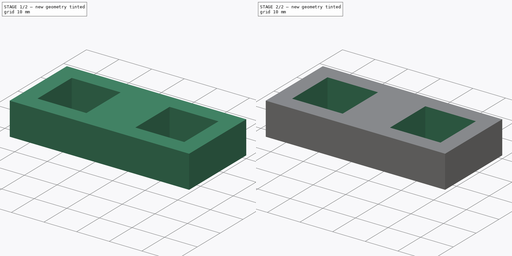
[diagram: build sequence overview — one tinted view per stage of 2, left to right]
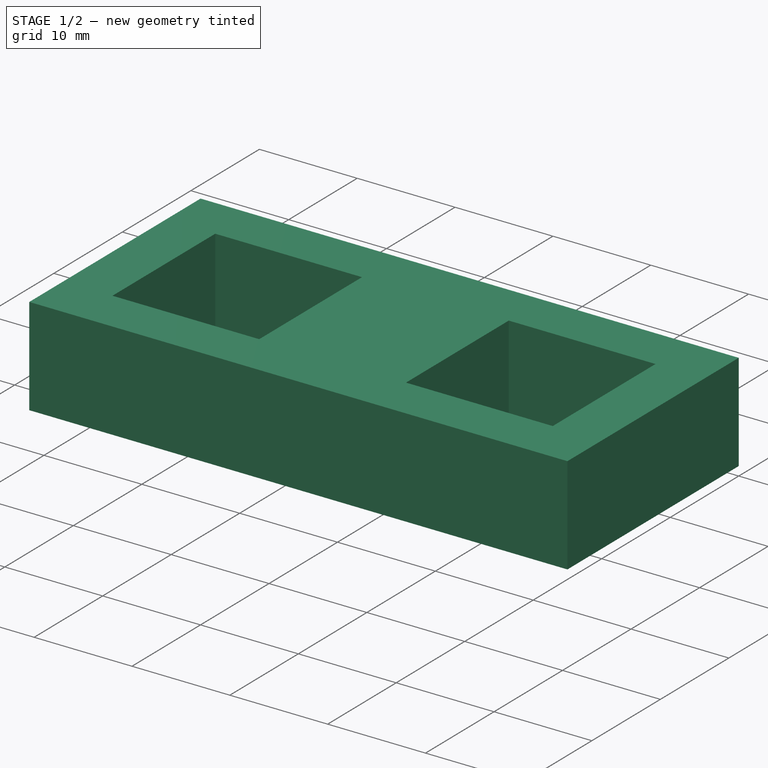
[diagram: stage 1 of 2 — iso view after this stage's code; geometry added in this stage tinted green]
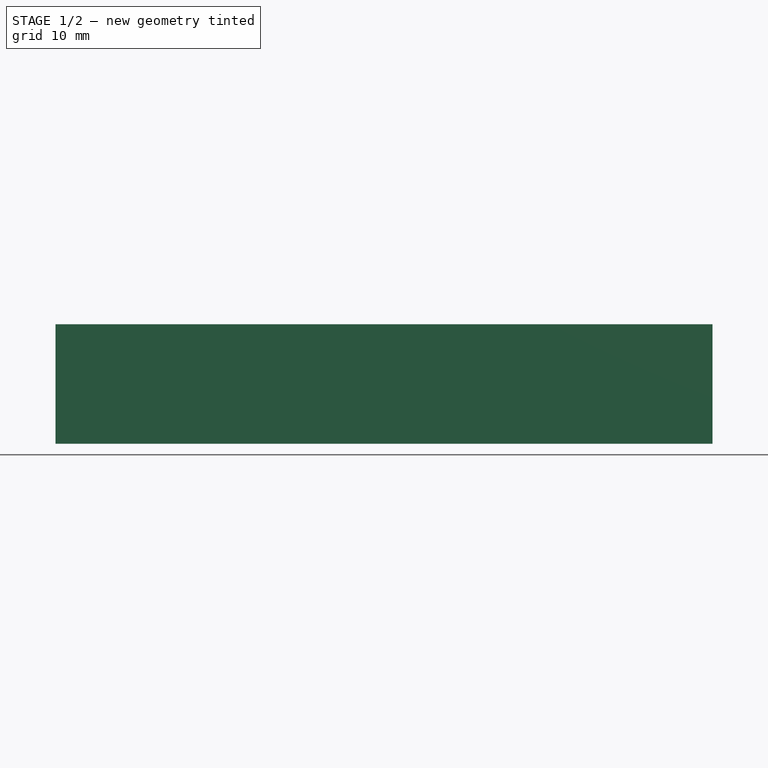
[diagram: stage 1 of 2 — front view after this stage's code; geometry added in this stage tinted green]
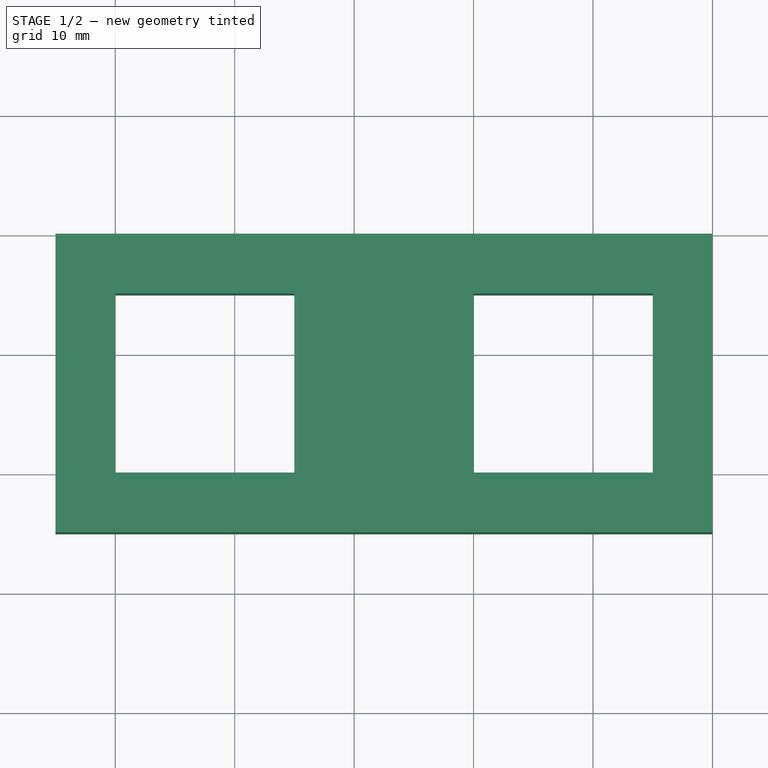
[diagram: stage 1 of 2 — top view after this stage's code; geometry added in this stage tinted green]
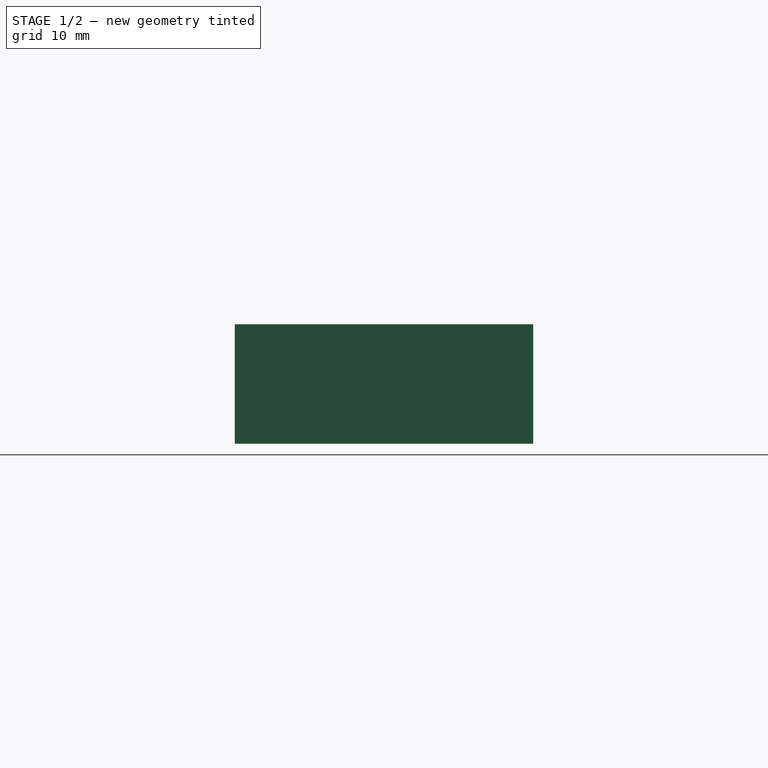
[diagram: stage 1 of 2 — right view after this stage's code; geometry added in this stage tinted green]
FCSTD DOCUMENT  (FreeCAD 0.21R33694 (Git))
Label: MakerbeamXL_CameraMountHolder
License: All rights reserved
LicenseURL: https://en.wikipedia.org/wiki/All_rights_reserved
objects: Sketcher::SketchObject×2, PartDesign::Pad×1, PartDesign::Pocket×1, PartDesign::Body×1
note: 7 computed .brp shape members not serialized (recipe doc carries the construction recipe); baked Part::Feature solids carry a one-line shape summary decoded from their .brp

FEATURE [Sketcher::SketchObject] Sketch
  FullyConstrained = true
  MapMode = 5
  Support = -> [XY_Plane]
  sketch-geometry (26):
    g0: LineSegment StartX=0 StartY=0 StartZ=0 EndX=45 EndY=0 EndZ=0
    g1: LineSegment StartX=45 StartY=0 StartZ=0 EndX=45 EndY=15 EndZ=0
    g2: LineSegment StartX=45 StartY=15 StartZ=0 EndX=0 EndY=15 EndZ=0
    g3: LineSegment StartX=0 StartY=15 StartZ=0 EndX=0 EndY=0 EndZ=0
    g4: LineSegment StartX=0 StartY=0 StartZ=0 EndX=7.5 EndY=0 EndZ=0
    g5: LineSegment StartX=7.5 StartY=0 StartZ=0 EndX=7.5 EndY=7.5 EndZ=0
    g6: LineSegment StartX=7.5 StartY=7.5 StartZ=0 EndX=0 EndY=7.5 EndZ=0
    g7: LineSegment StartX=0 StartY=7.5 StartZ=0 EndX=0 EndY=0 EndZ=0
    g8: LineSegment StartX=45 StartY=0 StartZ=0 EndX=37.5 EndY=0 EndZ=0
    g9: LineSegment StartX=37.5 StartY=0 StartZ=0 EndX=37.5 EndY=7.5 EndZ=0
    g10: LineSegment StartX=37.5 StartY=7.5 StartZ=0 EndX=45 EndY=7.5 EndZ=0
    g11: LineSegment StartX=45 StartY=7.5 StartZ=0 EndX=45 EndY=0 EndZ=0
    g12: Circle CenterX=7.5 CenterY=7.5 CenterZ=0 NormalX=0 NormalY=0 NormalZ=1 AngleXU=0 Radius=1.5
    g13: Circle CenterX=37.5 CenterY=7.5 CenterZ=0 NormalX=0 NormalY=0 NormalZ=1 AngleXU=0 Radius=1.5
    g14: LineSegment StartX=0 StartY=0 StartZ=0 EndX=15 EndY=0 EndZ=0
    g15: LineSegment StartX=15 StartY=0 StartZ=0 EndX=15 EndY=15 EndZ=0
    g16: LineSegment StartX=15 StartY=15 StartZ=0 EndX=0 EndY=15 EndZ=0
    g17: LineSegment StartX=0 StartY=15 StartZ=0 EndX=0 EndY=0 EndZ=0
    g18: LineSegment StartX=45 StartY=0 StartZ=0 EndX=30 EndY=0 EndZ=0
    g19: LineSegment StartX=30 StartY=0 StartZ=0 EndX=30 EndY=15 EndZ=0
    g20: LineSegment StartX=30 StartY=15 StartZ=0 EndX=45 EndY=15 EndZ=0
    g21: LineSegment StartX=45 StartY=15 StartZ=0 EndX=45 EndY=0 EndZ=0
    g22: LineSegment StartX=-5 StartY=20 StartZ=0 EndX=50 EndY=20 EndZ=0
    g23: LineSegment StartX=50 StartY=20 StartZ=0 EndX=50 EndY=-5 EndZ=0
    g24: LineSegment StartX=50 StartY=-5 StartZ=0 EndX=-5 EndY=-5 EndZ=0
    g25: LineSegment StartX=-5 StartY=-5 StartZ=0 EndX=-5 EndY=20 EndZ=0
  constraints (71):
    c: Coincident(g0,g1)
    c: Coincident(g1,g2)
    c: Coincident(g2,g3)
    c: Coincident(g3,g0)
    c: Horizontal(g0)
    c: Horizontal(g2)
    c: Vertical(g1)
    c: Vertical(g3)
    c: Coincident(g0,g-1)
    c: DistanceX(g2,g2) = 45
    c: DistanceY(g1,g1) = 15
    c: Coincident(g4,g5)
    c: Coincident(g5,g6)
    c: Coincident(g6,g7)
    c: Coincident(g7,g4)
    c: Horizontal(g4)
    c: Horizontal(g6)
    c: Vertical(g5)
    c: Vertical(g7)
    c: Coincident(g4,g0)
    c: Coincident(g8,g9)
    c: Coincident(g9,g10)
    c: Coincident(g10,g11)
    c: Coincident(g11,g8)
    c: Horizontal(g8)
    c: Horizontal(g10)
    c: Vertical(g9)
    c: Vertical(g11)
    c: Coincident(g8,g0)
    c: Equal(g6,g10)
    c: Equal(g5,g9)
    c: DistanceX(g6,g6) = 7.5
    c: Equal(g5,g6)
    c: Coincident(g12,g5)
    c: Coincident(g13,g9)
    c: Equal(g12,g13)
    c: Diameter(g12) = 3
    c: Coincident(g14,g15)
    c: Coincident(g15,g16)
    c: Coincident(g16,g17)
    c: Coincident(g17,g14)
    c: Horizontal(g14)
    c: Horizontal(g16)
    c: Vertical(g15)
    c: Vertical(g17)
    c: Coincident(g14,g0)
    c: PointOnObject(g15,g2)
    c: Coincident(g18,g19)
    c: Coincident(g19,g20)
    c: Coincident(g20,g21)
    c: Coincident(g21,g18)
    c: Horizontal(g18)
    c: Horizontal(g20)
    c: Vertical(g19)
    c: Vertical(g21)
    c: Coincident(g18,g0)
    c: PointOnObject(g19,g2)
    c: Coincident(g22,g23)
    c: Coincident(g23,g24)
    c: Coincident(g24,g25)
    c: Coincident(g25,g22)
    c: Horizontal(g22)
    c: Horizontal(g24)
    c: Vertical(g23)
    c: Vertical(g25)
    c: DistanceY(g16,g22) = 5
    c: DistanceY(g24,g14) = 5
    c: DistanceX(g20,g22) = 5
    c: DistanceX(g22,g16) = 5
    c: DistanceX(g16,g16) = 15
    c: DistanceX(g20,g20) = 15
FEATURE [PartDesign::Pad] Pad
  Direction = (0,0,1)
  Length = 10
  Length2 = 10
  Profile = -> Sketch
  ReferenceAxis = -> Sketch [N_Axis]
  Type = 0
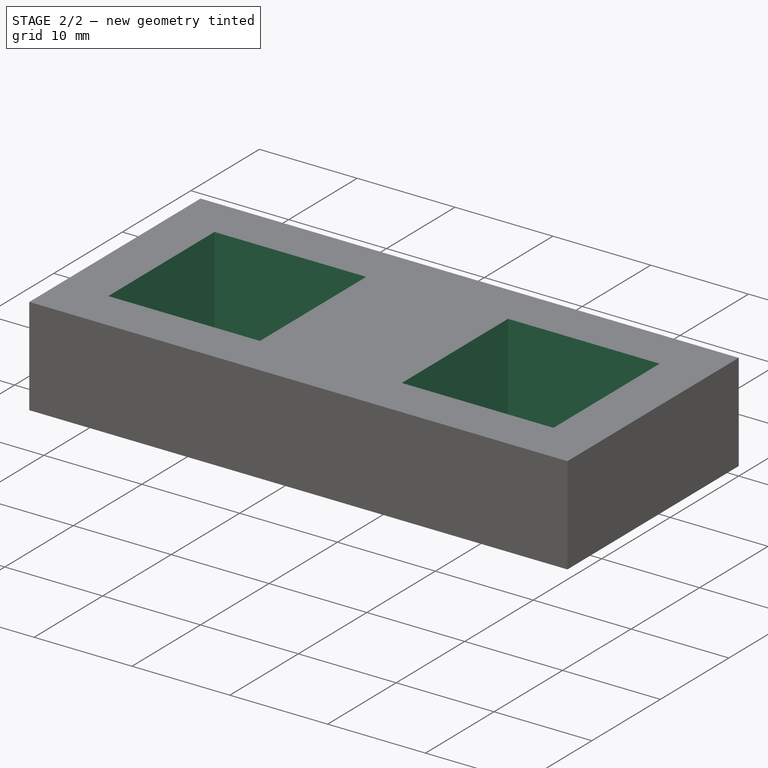
[diagram: stage 2 of 2 — iso view after this stage's code; geometry added in this stage tinted green]
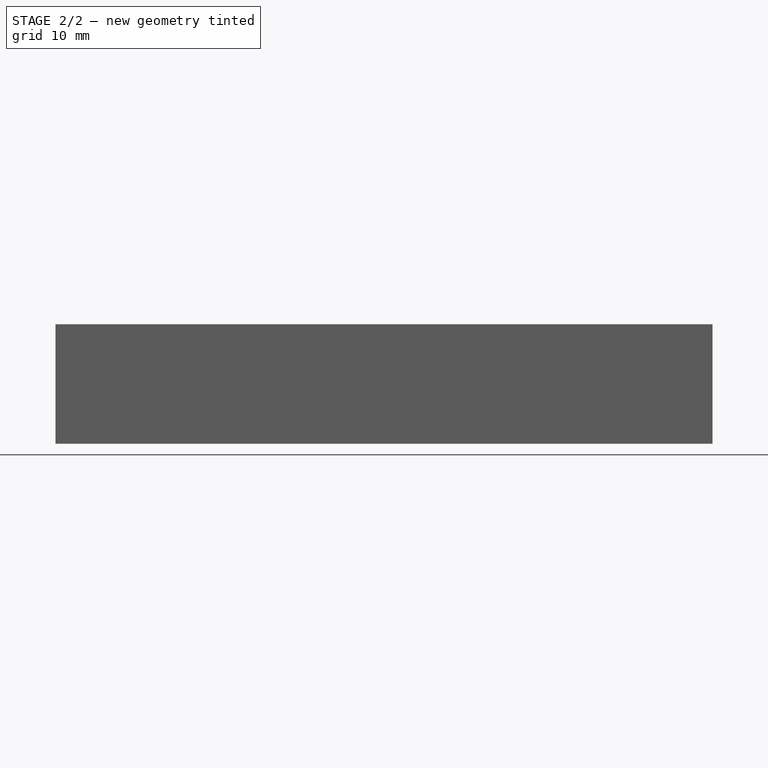
[diagram: stage 2 of 2 — front view after this stage's code; geometry added in this stage tinted green]
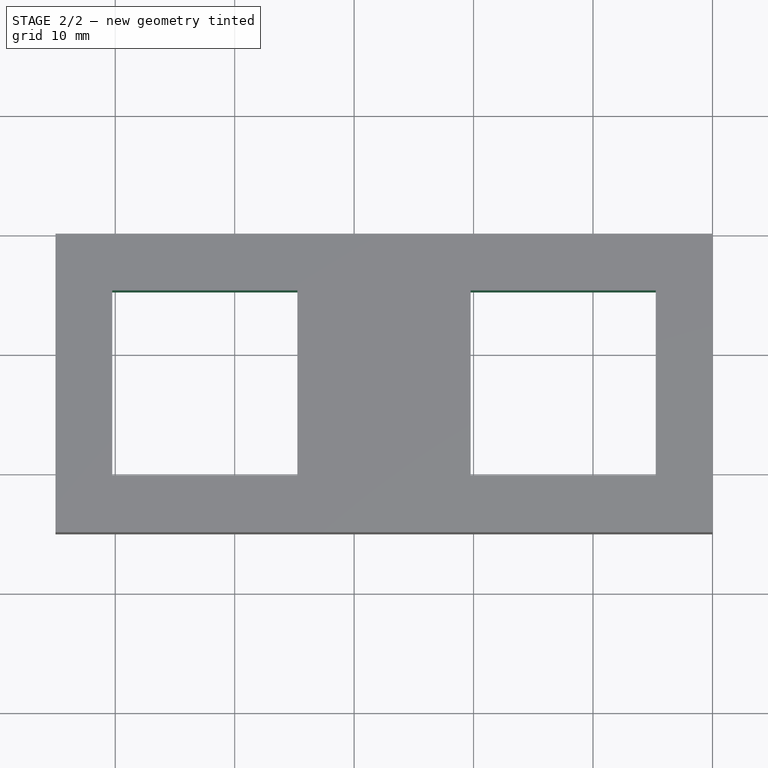
[diagram: stage 2 of 2 — top view after this stage's code; geometry added in this stage tinted green]
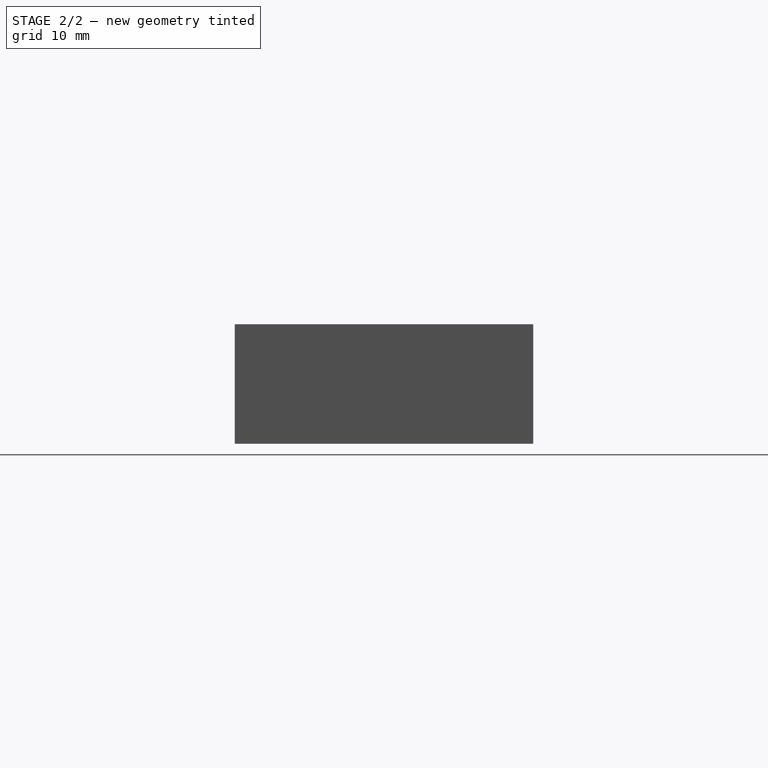
[diagram: stage 2 of 2 — right view after this stage's code; geometry added in this stage tinted green]
FEATURE [Sketcher::SketchObject] Sketch001
  ExternalGeometry = -> [Pad]
  FullyConstrained = true
  MapMode = 5
  Placement = pos=(0,0,10) rot=(0,0,1;0rad)
  Support = -> [Pad]
  sketch-geometry (8):
    g0: LineSegment StartX=-0.25 StartY=-0.25 StartZ=0 EndX=15.25 EndY=-0.25 EndZ=0
    g1: LineSegment StartX=15.25 StartY=-0.25 StartZ=0 EndX=15.25 EndY=15.25 EndZ=0
    g2: LineSegment StartX=15.25 StartY=15.25 StartZ=0 EndX=-0.25 EndY=15.25 EndZ=0
    g3: LineSegment StartX=-0.25 StartY=15.25 StartZ=0 EndX=-0.25 EndY=-0.25 EndZ=0
    g4: LineSegment StartX=29.75 StartY=-0.25 StartZ=0 EndX=45.25 EndY=-0.25 EndZ=0
    g5: LineSegment StartX=45.25 StartY=-0.25 StartZ=0 EndX=45.25 EndY=15.25 EndZ=0
    g6: LineSegment StartX=45.25 StartY=15.25 StartZ=0 EndX=29.75 EndY=15.25 EndZ=0
    g7: LineSegment StartX=29.75 StartY=15.25 StartZ=0 EndX=29.75 EndY=-0.25 EndZ=0
  constraints (24):
    c: Coincident(g0,g1)
    c: Coincident(g1,g2)
    c: Coincident(g2,g3)
    c: Coincident(g3,g0)
    c: Horizontal(g0)
    c: Horizontal(g2)
    c: Vertical(g1)
    c: Vertical(g3)
    c: Coincident(g4,g5)
    c: Coincident(g5,g6)
    c: Coincident(g6,g7)
    c: Coincident(g7,g4)
    c: Horizontal(g4)
    c: Horizontal(g6)
    c: Vertical(g5)
    c: Vertical(g7)
    c: Equal(g3,g2)
    c: Equal(g7,g6)
    c: Equal(g7,g1)
    c: DistanceX(g2,g-3) = 0.25
    c: DistanceX(g-3,g1) = 0.25
    c: DistanceY(g0,g-4) = 0.25
    c: DistanceX(g6,g-6) = 0.25
    c: DistanceY(g-6,g6) = 0.25
FEATURE [PartDesign::Pocket] Pocket
  BaseFeature = -> Pad
  Direction = (0,0,-1)
  Length = 5
  Length2 = 5
  Profile = -> Sketch001
  ReferenceAxis = -> Sketch001 [N_Axis]
  Type = 1
FEATURE [PartDesign::Body] Body
  Group = -> [Sketch,Pad,Sketch001,Pocket]
  Origin = -> Origin
  Tip = -> Pocket
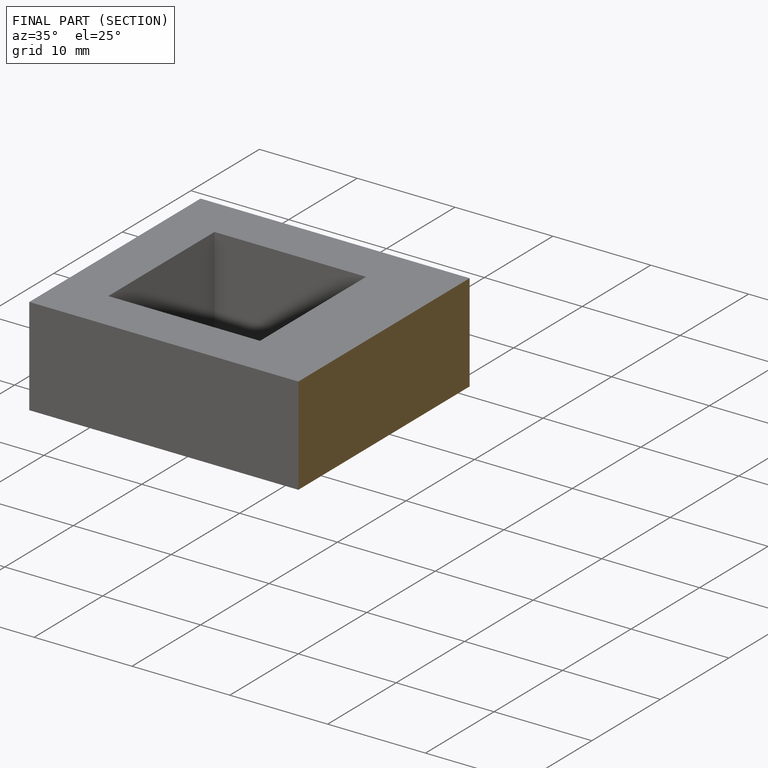
[diagram: finished part — half-section view (interior)]
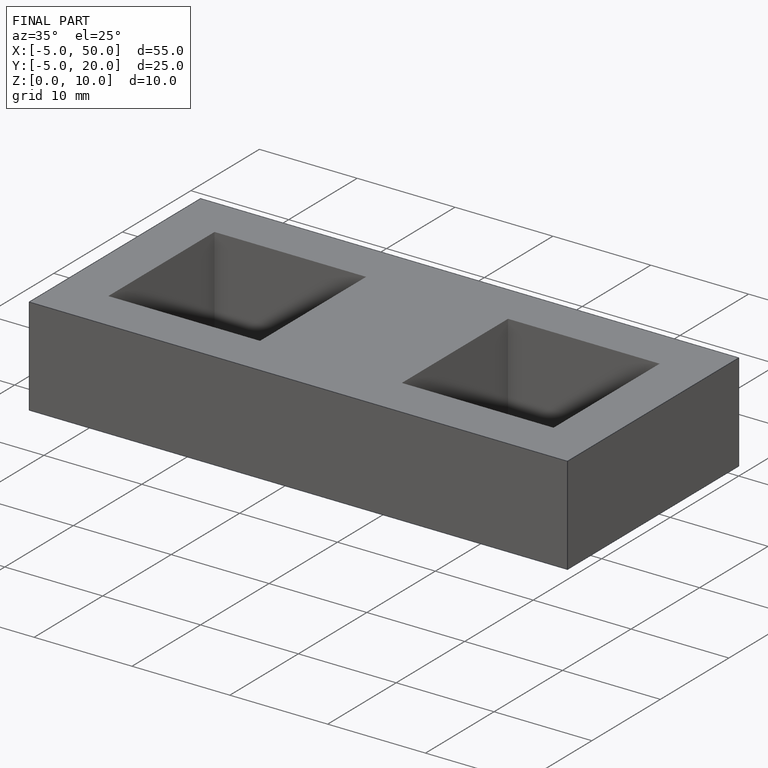
[diagram: finished part — iso view with bounding-box wireframe]
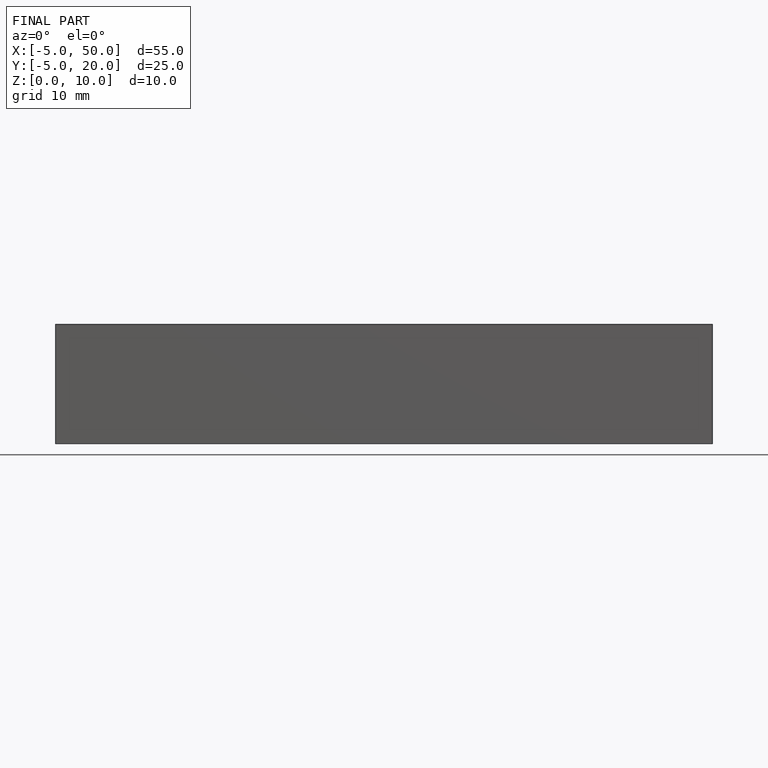
[diagram: finished part — front view with bounding-box wireframe]
